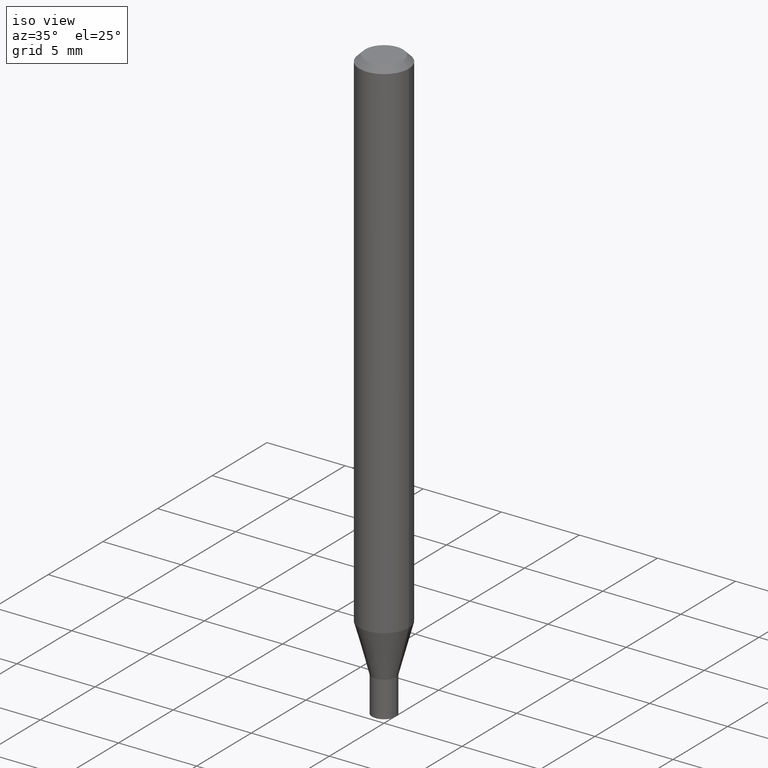
[diagram: clean part render]
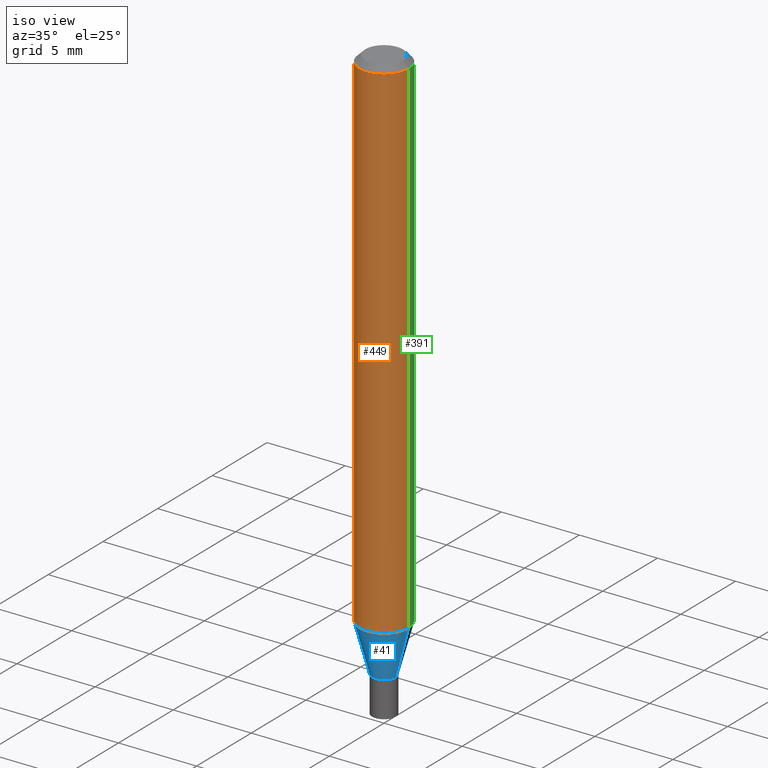
[diagram: same view with three faces highlighted in distinct colors, each labeled with its STEP entity id]
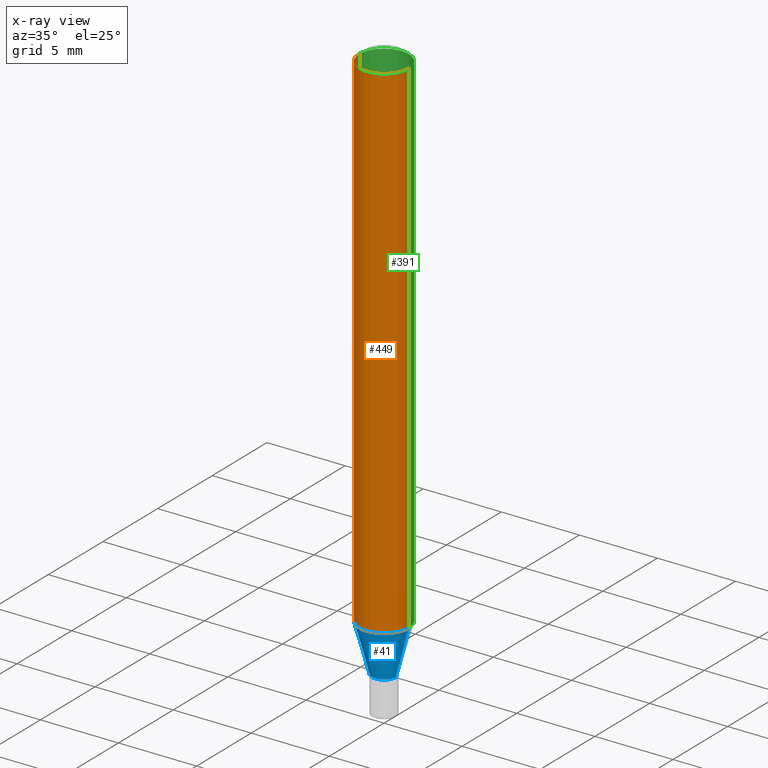
[diagram: x-ray of the same camera — body ghosted, the three highlighted faces saturated]
A machine part, iso view with three faces highlighted in distinct colors.
The next image is the same camera in x-ray (body ghosted, the three faces saturated) — at least one of them is partly hidden behind the body in this view.
Their STEP definitions:

[orange] entity #449 — the highlighted cylindrical surface (edge-blend (fillet) strip) has radius 1.5875 mm, axis along (-0, 0, 1).
#9 = CARTESIAN_POINT ( 'NONE',  ( 0.000000000000000000, 0.000000000000000000, 0.000000000000000000 ) ) ;
#14 = CARTESIAN_POINT ( 'NONE',  ( -0.06250000000000000000, 4.440892098500626162E-16, -3.074334431409316114E-30 ) ) ;
#18 = EDGE_LOOP ( 'NONE', ( #157, #228, #27, #76 ) ) ;
#20 = CARTESIAN_POINT ( 'NONE',  ( 3.151496067148295806E-29, -4.499501150886003245E-15, -1.288708348754013633 ) ) ;
#26 = AXIS2_PLACEMENT_3D ( 'NONE', #20, #51, #328 ) ;
#27 = ORIENTED_EDGE ( 'NONE', *, *, #39, .T. ) ;
#39 = EDGE_CURVE ( 'NONE', #444, #254, #420, .T. ) ;
#51 = DIRECTION ( 'NONE',  ( -2.445468806185136597E-29, 3.491481338843145583E-15, 1.000000000000000000 ) ) ;
#76 = ORIENTED_EDGE ( 'NONE', *, *, #302, .F. ) ;
#99 = CARTESIAN_POINT ( 'NONE',  ( 0.06250000000000000000, -4.364351673553916694E-16, 3.047610484872459871E-30 ) ) ;
#100 = CARTESIAN_POINT ( 'NONE',  ( 0.06250000000000000000, -4.935936318241394126E-15, -1.288708348754013633 ) ) ;
#107 = VECTOR ( 'NONE', #131, 39.37007874015748143 ) ;
#113 = CIRCLE ( 'NONE', #156, 0.06250000000000000000 ) ;
#114 = DIRECTION ( 'NONE',  ( -2.445468806185136597E-29, 3.491481338843145583E-15, 1.000000000000000000 ) ) ;
#131 = DIRECTION ( 'NONE',  ( -2.445468806185136877E-29, 3.491481338843145188E-15, 1.000000000000000000 ) ) ;
#135 = CYLINDRICAL_SURFACE ( 'NONE', #320, 0.06250000000000000000 ) ;
#137 = CIRCLE ( 'NONE', #26, 0.06250000000000000000 ) ;
#138 = CARTESIAN_POINT ( 'NONE',  ( 3.668203209277705088E-31, -5.237222008264718399E-17, -0.01499999999999999944 ) ) ;
#145 = DIRECTION ( 'NONE',  ( 1.000000000000000000, -6.982962677686266711E-15, 0.000000000000000000 ) ) ;
#156 = AXIS2_PLACEMENT_3D ( 'NONE', #138, #114, #145 ) ;
#157 = ORIENTED_EDGE ( 'NONE', *, *, #327, .F. ) ;
#187 = DIRECTION ( 'NONE',  ( -2.445468806185136877E-29, 3.491481338843145188E-15, 1.000000000000000000 ) ) ;
#215 = DIRECTION ( 'NONE',  ( 1.000000000000000000, -6.982962677686266711E-15, 4.876176775795935793E-29 ) ) ;
#228 = ORIENTED_EDGE ( 'NONE', *, *, #323, .T. ) ;
#247 = VECTOR ( 'NONE', #187, 39.37007874015748143 ) ;
#254 = VERTEX_POINT ( 'NONE', #332 ) ;
#290 = VERTEX_POINT ( 'NONE', #398 ) ;
#302 = EDGE_CURVE ( 'NONE', #290, #254, #113, .T. ) ;
#320 = AXIS2_PLACEMENT_3D ( 'NONE', #9, #447, #215 ) ;
#323 = EDGE_CURVE ( 'NONE', #409, #444, #137, .T. ) ;
#327 = EDGE_CURVE ( 'NONE', #409, #290, #437, .T. ) ;
#328 = DIRECTION ( 'NONE',  ( 1.000000000000000000, -6.982962677686262766E-15, 0.000000000000000000 ) ) ;
#332 = CARTESIAN_POINT ( 'NONE',  ( 0.06250000000000000000, -4.888073874380388472E-16, -0.01499999999999999944 ) ) ;
#355 = FACE_OUTER_BOUND ( 'NONE', #18, .T. ) ;
#398 = CARTESIAN_POINT ( 'NONE',  ( -0.06250000000000000000, -1.831847475634262349E-15, -0.01499999999999999944 ) ) ;
#409 = VERTEX_POINT ( 'NONE', #452 ) ;
#420 = LINE ( 'NONE', #99, #107 ) ;
#437 = LINE ( 'NONE', #14, #247 ) ;
#444 = VERTEX_POINT ( 'NONE', #100 ) ;
#447 = DIRECTION ( 'NONE',  ( -2.445468806185136597E-29, 3.491481338843145583E-15, 1.000000000000000000 ) ) ;
#449 = ADVANCED_FACE ( 'NONE', ( #355 ), #135, .T. ) ;
#452 = CARTESIAN_POINT ( 'NONE',  ( -0.06250000000000000000, -4.055411941035939840E-15, -1.288708348754013633 ) ) ;

[blue] entity #41 — the highlighted conical surface has half-angle 15 deg.
#20 = CARTESIAN_POINT ( 'NONE',  ( 3.151496067148295806E-29, -4.499501150886003245E-15, -1.288708348754013633 ) ) ;
#22 = CARTESIAN_POINT ( 'NONE',  ( 3.448111016721042669E-29, -4.922988687768835701E-15, -1.409999999999999920 ) ) ;
#26 = AXIS2_PLACEMENT_3D ( 'NONE', #20, #51, #328 ) ;
#41 = ADVANCED_FACE ( 'NONE', ( #236 ), #431, .T. ) ;
#48 = DIRECTION ( 'NONE',  ( 0.2588190451025213501, 1.565188264969621968E-15, 0.9659258262890682012 ) ) ;
#51 = DIRECTION ( 'NONE',  ( -2.445468806185136597E-29, 3.491481338843145583E-15, 1.000000000000000000 ) ) ;
#68 = DIRECTION ( 'NONE',  ( 1.000000000000000000, -6.982962677686254878E-15, 0.000000000000000000 ) ) ;
#75 = CIRCLE ( 'NONE', #381, 0.03000000000000047420 ) ;
#88 = DIRECTION ( 'NONE',  ( -2.445468806185136597E-29, 3.491481338843145583E-15, 1.000000000000000000 ) ) ;
#93 = ORIENTED_EDGE ( 'NONE', *, *, #396, .T. ) ;
#94 = ORIENTED_EDGE ( 'NONE', *, *, #377, .T. ) ;
#100 = CARTESIAN_POINT ( 'NONE',  ( 0.06250000000000000000, -4.935936318241394126E-15, -1.288708348754013633 ) ) ;
#119 = VERTEX_POINT ( 'NONE', #319 ) ;
#122 = DIRECTION ( 'NONE',  ( 1.000000000000000000, -6.982962677686254878E-15, 0.000000000000000000 ) ) ;
#125 = DIRECTION ( 'NONE',  ( -0.2588190451025213501, 5.211531920934551042E-15, 0.9659258262890682012 ) ) ;
#137 = CIRCLE ( 'NONE', #26, 0.06250000000000000000 ) ;
#161 = ORIENTED_EDGE ( 'NONE', *, *, #323, .F. ) ;
#183 = EDGE_LOOP ( 'NONE', ( #384, #93, #94, #161 ) ) ;
#186 = CARTESIAN_POINT ( 'NONE',  ( 0.03000000000000047420, -5.132477568099426385E-15, -1.409999999999999920 ) ) ;
#230 = LINE ( 'NONE', #186, #261 ) ;
#236 = FACE_OUTER_BOUND ( 'NONE', #183, .T. ) ;
#260 = VERTEX_POINT ( 'NONE', #287 ) ;
#261 = VECTOR ( 'NONE', #48, 39.37007874015747433 ) ;
#278 = VECTOR ( 'NONE', #125, 39.37007874015747433 ) ;
#287 = CARTESIAN_POINT ( 'NONE',  ( -0.03000000000000047420, -4.382618904038371071E-15, -1.409999999999999920 ) ) ;
#319 = CARTESIAN_POINT ( 'NONE',  ( 0.03000000000000047420, -5.132477568099426385E-15, -1.409999999999999920 ) ) ;
#323 = EDGE_CURVE ( 'NONE', #409, #444, #137, .T. ) ;
#328 = DIRECTION ( 'NONE',  ( 1.000000000000000000, -6.982962677686262766E-15, 0.000000000000000000 ) ) ;
#334 = AXIS2_PLACEMENT_3D ( 'NONE', #457, #387, #68 ) ;
#368 = CARTESIAN_POINT ( 'NONE',  ( -0.03000000000000047420, -4.709825867040802301E-15, -1.409999999999999920 ) ) ;
#372 = EDGE_CURVE ( 'NONE', #260, #409, #406, .T. ) ;
#377 = EDGE_CURVE ( 'NONE', #119, #444, #230, .T. ) ;
#381 = AXIS2_PLACEMENT_3D ( 'NONE', #22, #88, #122 ) ;
#384 = ORIENTED_EDGE ( 'NONE', *, *, #372, .F. ) ;
#387 = DIRECTION ( 'NONE',  ( -2.445468806185136597E-29, 3.491481338843145583E-15, 1.000000000000000000 ) ) ;
#396 = EDGE_CURVE ( 'NONE', #260, #119, #75, .T. ) ;
#406 = LINE ( 'NONE', #368, #278 ) ;
#409 = VERTEX_POINT ( 'NONE', #452 ) ;
#431 = CONICAL_SURFACE ( 'NONE', #334, 0.03000000000000047420, 0.2617993877991500740 ) ;
#444 = VERTEX_POINT ( 'NONE', #100 ) ;
#452 = CARTESIAN_POINT ( 'NONE',  ( -0.06250000000000000000, -4.055411941035939840E-15, -1.288708348754013633 ) ) ;
#457 = CARTESIAN_POINT ( 'NONE',  ( 3.448111016721042669E-29, -4.922988687768835701E-15, -1.409999999999999920 ) ) ;

[green] entity #391 — the highlighted cylindrical surface (edge-blend (fillet) strip) has radius 1.5875 mm, axis along (-0, 0, 1).
#14 = CARTESIAN_POINT ( 'NONE',  ( -0.06250000000000000000, 4.440892098500626162E-16, -3.074334431409316114E-30 ) ) ;
#15 = ORIENTED_EDGE ( 'NONE', *, *, #39, .F. ) ;
#34 = ORIENTED_EDGE ( 'NONE', *, *, #327, .T. ) ;
#39 = EDGE_CURVE ( 'NONE', #444, #254, #420, .T. ) ;
#42 = AXIS2_PLACEMENT_3D ( 'NONE', #340, #304, #226 ) ;
#60 = DIRECTION ( 'NONE',  ( -2.445468806185136597E-29, 3.491481338843145583E-15, 1.000000000000000000 ) ) ;
#65 = AXIS2_PLACEMENT_3D ( 'NONE', #188, #60, #410 ) ;
#99 = CARTESIAN_POINT ( 'NONE',  ( 0.06250000000000000000, -4.364351673553916694E-16, 3.047610484872459871E-30 ) ) ;
#100 = CARTESIAN_POINT ( 'NONE',  ( 0.06250000000000000000, -4.935936318241394126E-15, -1.288708348754013633 ) ) ;
#107 = VECTOR ( 'NONE', #131, 39.37007874015748143 ) ;
#108 = AXIS2_PLACEMENT_3D ( 'NONE', #411, #195, #245 ) ;
#131 = DIRECTION ( 'NONE',  ( -2.445468806185136877E-29, 3.491481338843145188E-15, 1.000000000000000000 ) ) ;
#144 = CYLINDRICAL_SURFACE ( 'NONE', #42, 0.06250000000000000000 ) ;
#187 = DIRECTION ( 'NONE',  ( -2.445468806185136877E-29, 3.491481338843145188E-15, 1.000000000000000000 ) ) ;
#188 = CARTESIAN_POINT ( 'NONE',  ( 3.151496067148295806E-29, -4.499501150886003245E-15, -1.288708348754013633 ) ) ;
#195 = DIRECTION ( 'NONE',  ( -2.445468806185136597E-29, 3.491481338843145583E-15, 1.000000000000000000 ) ) ;
#223 = CIRCLE ( 'NONE', #108, 0.06250000000000000000 ) ;
#226 = DIRECTION ( 'NONE',  ( 1.000000000000000000, -6.982962677686266711E-15, 4.876176775795935793E-29 ) ) ;
#235 = EDGE_LOOP ( 'NONE', ( #455, #34, #348, #15 ) ) ;
#241 = EDGE_CURVE ( 'NONE', #254, #290, #223, .T. ) ;
#245 = DIRECTION ( 'NONE',  ( 1.000000000000000000, -6.982962677686266711E-15, 0.000000000000000000 ) ) ;
#247 = VECTOR ( 'NONE', #187, 39.37007874015748143 ) ;
#254 = VERTEX_POINT ( 'NONE', #332 ) ;
#290 = VERTEX_POINT ( 'NONE', #398 ) ;
#296 = CIRCLE ( 'NONE', #65, 0.06250000000000000000 ) ;
#304 = DIRECTION ( 'NONE',  ( -2.445468806185136597E-29, 3.491481338843145583E-15, 1.000000000000000000 ) ) ;
#327 = EDGE_CURVE ( 'NONE', #409, #290, #437, .T. ) ;
#332 = CARTESIAN_POINT ( 'NONE',  ( 0.06250000000000000000, -4.888073874380388472E-16, -0.01499999999999999944 ) ) ;
#340 = CARTESIAN_POINT ( 'NONE',  ( 0.000000000000000000, 0.000000000000000000, 0.000000000000000000 ) ) ;
#348 = ORIENTED_EDGE ( 'NONE', *, *, #241, .F. ) ;
#391 = ADVANCED_FACE ( 'NONE', ( #456 ), #144, .T. ) ;
#398 = CARTESIAN_POINT ( 'NONE',  ( -0.06250000000000000000, -1.831847475634262349E-15, -0.01499999999999999944 ) ) ;
#409 = VERTEX_POINT ( 'NONE', #452 ) ;
#410 = DIRECTION ( 'NONE',  ( 1.000000000000000000, -6.982962677686262766E-15, 0.000000000000000000 ) ) ;
#411 = CARTESIAN_POINT ( 'NONE',  ( 3.668203209277705088E-31, -5.237222008264718399E-17, -0.01499999999999999944 ) ) ;
#420 = LINE ( 'NONE', #99, #107 ) ;
#437 = LINE ( 'NONE', #14, #247 ) ;
#438 = EDGE_CURVE ( 'NONE', #444, #409, #296, .T. ) ;
#444 = VERTEX_POINT ( 'NONE', #100 ) ;
#452 = CARTESIAN_POINT ( 'NONE',  ( -0.06250000000000000000, -4.055411941035939840E-15, -1.288708348754013633 ) ) ;
#455 = ORIENTED_EDGE ( 'NONE', *, *, #438, .T. ) ;
#456 = FACE_OUTER_BOUND ( 'NONE', #235, .T. ) ;